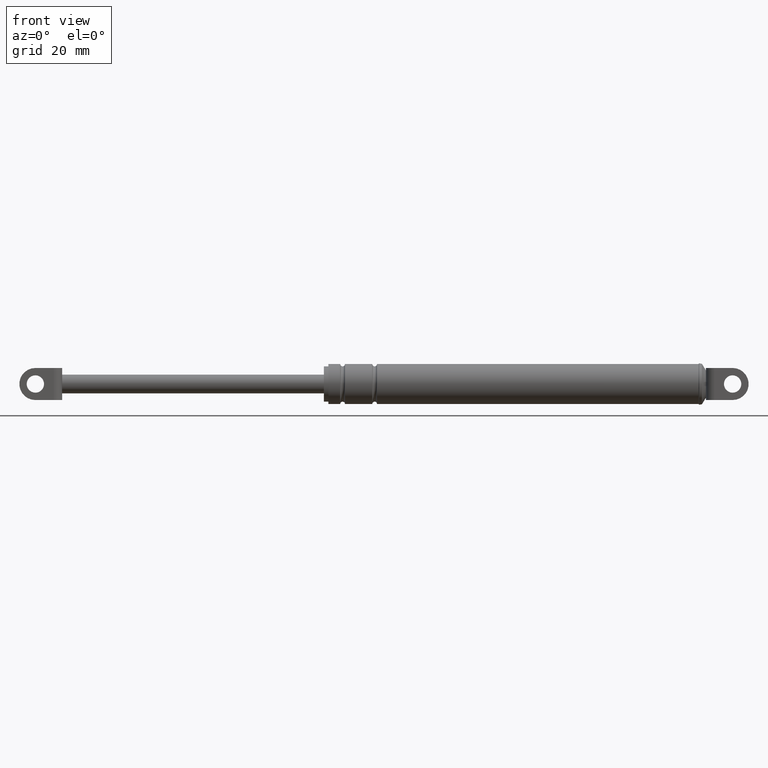
[diagram: clean part render]
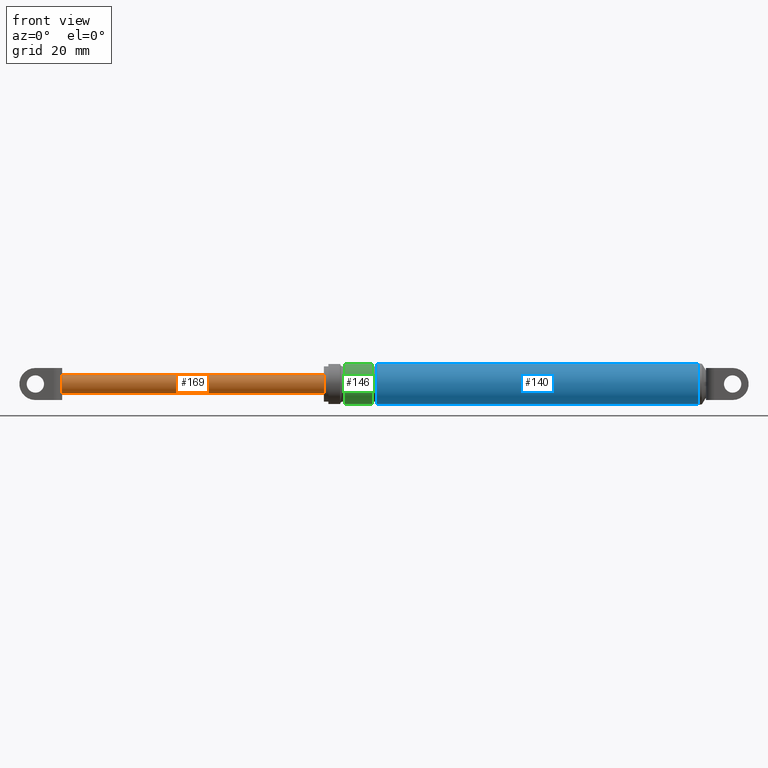
[diagram: same view with three faces highlighted in distinct colors, each labeled with its STEP entity id]
A machine part, front view with three faces highlighted in distinct colors.
Their STEP definitions:

[orange] entity #169 — the highlighted cylindrical surface (edge-blend (fillet) strip) has radius 3.5 mm, axis along (1, 0, 0).
#169=ADVANCED_FACE('',(#755),#754,.T.);
#754=CYLINDRICAL_SURFACE('',#1222,3.50000000000E+000);
#755=FACE_OUTER_BOUND('',#1223,.T.);
#1219=CARTESIAN_POINT('',(0.00000000000E+000,0.00000000000E+000,1.88774157740E+002));
#1220=DIRECTION('',(1.00000000000E+000,-0.00000000000E+000,-0.00000000000E+000));
#1221=DIRECTION('',(-0.00000000000E+000,-0.00000000000E+000,-1.00000000000E+000));
#1222=AXIS2_PLACEMENT_3D('',#1219,#1220,#1221);
#1223=EDGE_LOOP('',(#1524,#1525,#1526,#1527));
#1524=ORIENTED_EDGE('',*,*,#1685,.F.);
#1525=ORIENTED_EDGE('',*,*,#1688,.T.);
#1526=ORIENTED_EDGE('',*,*,#1686,.T.);
#1527=ORIENTED_EDGE('',*,*,#1689,.F.);
#1685=EDGE_CURVE('',#2625,#2624,#2632,.T.);
#1686=EDGE_CURVE('',#2638,#2639,#2640,.T.);
#1688=EDGE_CURVE('',#2625,#2638,#2652,.T.);
#1689=EDGE_CURVE('',#2624,#2639,#2658,.T.);
#2624=VERTEX_POINT('',#3254);
#2625=VERTEX_POINT('',#3255);
#2632=CIRCLE('',#3263,3.50000000000E+000);
#2638=VERTEX_POINT('',#3264);
#2639=VERTEX_POINT('',#3265);
#2640=CIRCLE('',#3269,3.50000000000E+000);
#2652=(BOUNDED_CURVE() B_SPLINE_CURVE(1,(#3274,#3275),.UNSPECIFIED.,.F.,.F.) B_SPLINE_CURVE_WITH_KNOTS((2,2),(8.33333332085E-002,9.16666666563E-001),.UNSPECIFIED.) CURVE() GEOMETRIC_REPRESENTATION_ITEM() RATIONAL_B_SPLINE_CURVE((1.00000000000E+000,1.00000000000E+000)) REPRESENTATION_ITEM('') );
#2658=(BOUNDED_CURVE() B_SPLINE_CURVE(1,(#3276,#3277),.UNSPECIFIED.,.F.,.F.) B_SPLINE_CURVE_WITH_KNOTS((2,2),(8.33333333333E-002,9.16666666667E-001),.UNSPECIFIED.) CURVE() GEOMETRIC_REPRESENTATION_ITEM() RATIONAL_B_SPLINE_CURVE((7.50000000000E-001,7.50000000000E-001)) REPRESENTATION_ITEM('') );
#3254=CARTESIAN_POINT('',(5.15770304968E+001,0.00000000000E+000,1.92274157740E+002));
#3255=CARTESIAN_POINT('',(5.15770304968E+001,1.48029736617E-016,1.85274157740E+002));
#3260=CARTESIAN_POINT('',(5.15770304968E+001,0.00000000000E+000,1.88774157740E+002));
#3261=DIRECTION('',(-1.00000000000E+000,0.00000000000E+000,0.00000000000E+000));
#3262=DIRECTION('',(0.00000000000E+000,-1.22460635382E-016,1.00000000000E+000));
#3263=AXIS2_PLACEMENT_3D('',#3260,#3261,#3262);
#3264=CARTESIAN_POINT('',(1.49577030497E+002,1.48029736617E-016,1.85274157740E+002));
#3265=CARTESIAN_POINT('',(1.49577030497E+002,0.00000000000E+000,1.92274157740E+002));
#3266=CARTESIAN_POINT('',(1.49577030497E+002,0.00000000000E+000,1.88774157740E+002));
#3267=DIRECTION('',(-1.00000000000E+000,0.00000000000E+000,0.00000000000E+000));
#3268=DIRECTION('',(0.00000000000E+000,-1.22460635382E-016,1.00000000000E+000));
#3269=AXIS2_PLACEMENT_3D('',#3266,#3267,#3268);
#3274=CARTESIAN_POINT('',(5.15770304822E+001,0.00000000000E+000,1.85274157740E+002));
#3275=CARTESIAN_POINT('',(1.49577030485E+002,0.00000000000E+000,1.85274157740E+002));
#3276=CARTESIAN_POINT('',(5.15770304968E+001,0.00000000000E+000,1.92274157740E+002));
#3277=CARTESIAN_POINT('',(1.49577030497E+002,0.00000000000E+000,1.92274157740E+002));

[blue] entity #140 — the highlighted cylindrical surface (edge-blend (fillet) strip) has radius 7.5 mm, axis along (1, 0, 0).
#140=ADVANCED_FACE('',(#460),#459,.T.);
#459=CYLINDRICAL_SURFACE('',#1048,7.50000000000E+000);
#460=FACE_OUTER_BOUND('',#1049,.T.);
#1045=CARTESIAN_POINT('',(0.00000000000E+000,0.00000000000E+000,1.88774157740E+002));
#1046=DIRECTION('',(1.00000000000E+000,-0.00000000000E+000,-0.00000000000E+000));
#1047=DIRECTION('',(0.00000000000E+000,0.00000000000E+000,-1.00000000000E+000));
#1048=AXIS2_PLACEMENT_3D('',#1045,#1046,#1047);
#1049=EDGE_LOOP('',(#1384,#1385,#1386,#1387));
#1384=ORIENTED_EDGE('',*,*,#1621,.F.);
#1385=ORIENTED_EDGE('',*,*,#1623,.T.);
#1386=ORIENTED_EDGE('',*,*,#1625,.T.);
#1387=ORIENTED_EDGE('',*,*,#1624,.F.);
#1621=EDGE_CURVE('',#2177,#2176,#2210,.T.);
#1623=EDGE_CURVE('',#2177,#2217,#2224,.T.);
#1624=EDGE_CURVE('',#2176,#2216,#2230,.T.);
#1625=EDGE_CURVE('',#2217,#2216,#2236,.T.);
#2176=VERTEX_POINT('',#2992);
#2177=VERTEX_POINT('',#2993);
#2210=CIRCLE('',#3021,7.50000000000E+000);
#2216=VERTEX_POINT('',#3022);
#2217=VERTEX_POINT('',#3023);
#2224=(BOUNDED_CURVE() B_SPLINE_CURVE(1,(#3028,#3029),.UNSPECIFIED.,.F.,.F.) B_SPLINE_CURVE_WITH_KNOTS((2,2),(7.12504452090E-002,9.28749554888E-001),.UNSPECIFIED.) CURVE() GEOMETRIC_REPRESENTATION_ITEM() RATIONAL_B_SPLINE_CURVE((1.00000000000E+000,1.00000000000E+000)) REPRESENTATION_ITEM('') );
#2230=(BOUNDED_CURVE() B_SPLINE_CURVE(1,(#3030,#3031),.UNSPECIFIED.,.F.,.F.) B_SPLINE_CURVE_WITH_KNOTS((2,2),(7.12504453153E-002,9.28749554685E-001),.UNSPECIFIED.) CURVE() GEOMETRIC_REPRESENTATION_ITEM() RATIONAL_B_SPLINE_CURVE((7.50000000000E-001,7.50000000000E-001)) REPRESENTATION_ITEM('') );
#2236=CIRCLE('',#3035,7.50000000000E+000);
#2992=CARTESIAN_POINT('',(1.69477030497E+002,0.00000000000E+000,1.96274157740E+002));
#2993=CARTESIAN_POINT('',(1.69477030497E+002,5.92118946467E-016,1.81274157740E+002));
#3018=CARTESIAN_POINT('',(1.69477030497E+002,0.00000000000E+000,1.88774157740E+002));
#3019=DIRECTION('',(-1.00000000000E+000,0.00000000000E+000,0.00000000000E+000));
#3020=DIRECTION('',(0.00000000000E+000,-1.22460635382E-016,1.00000000000E+000));
#3021=AXIS2_PLACEMENT_3D('',#3018,#3019,#3020);
#3022=CARTESIAN_POINT('',(2.89827030497E+002,0.00000000000E+000,1.96274157740E+002));
#3023=CARTESIAN_POINT('',(2.89827030497E+002,5.92118946467E-016,1.81274157740E+002));
#3028=CARTESIAN_POINT('',(1.69477030482E+002,0.00000000000E+000,1.81274157740E+002));
#3029=CARTESIAN_POINT('',(2.89827030525E+002,0.00000000000E+000,1.81274157740E+002));
#3030=CARTESIAN_POINT('',(1.69477030497E+002,-2.96059473233E-016,1.96274157740E+002));
#3031=CARTESIAN_POINT('',(2.89827030497E+002,-2.96059473233E-016,1.96274157740E+002));
#3032=CARTESIAN_POINT('',(2.89827030497E+002,0.00000000000E+000,1.88774157740E+002));
#3033=DIRECTION('',(-1.00000000000E+000,0.00000000000E+000,0.00000000000E+000));
#3034=DIRECTION('',(0.00000000000E+000,-1.22460635382E-016,1.00000000000E+000));
#3035=AXIS2_PLACEMENT_3D('',#3032,#3033,#3034);

[green] entity #146 — the highlighted cylindrical surface (edge-blend (fillet) strip) has radius 7.5 mm, axis along (1, 0, 0).
#146=ADVANCED_FACE('',(#520),#519,.T.);
#519=CYLINDRICAL_SURFACE('',#1102,7.50000000000E+000);
#520=FACE_OUTER_BOUND('',#1103,.T.);
#1099=CARTESIAN_POINT('',(0.00000000000E+000,0.00000000000E+000,1.88774157740E+002));
#1100=DIRECTION('',(1.00000000000E+000,-0.00000000000E+000,-0.00000000000E+000));
#1101=DIRECTION('',(0.00000000000E+000,0.00000000000E+000,-1.00000000000E+000));
#1102=AXIS2_PLACEMENT_3D('',#1099,#1100,#1101);
#1103=EDGE_LOOP('',(#1408,#1409,#1410,#1411));
#1408=ORIENTED_EDGE('',*,*,#1615,.F.);
#1409=ORIENTED_EDGE('',*,*,#1632,.T.);
#1410=ORIENTED_EDGE('',*,*,#1620,.T.);
#1411=ORIENTED_EDGE('',*,*,#1633,.F.);
#1615=EDGE_CURVE('',#2137,#2136,#2170,.T.);
#1620=EDGE_CURVE('',#2184,#2191,#2204,.T.);
#1632=EDGE_CURVE('',#2137,#2184,#2280,.T.);
#1633=EDGE_CURVE('',#2136,#2191,#2286,.T.);
#2136=VERTEX_POINT('',#2962);
#2137=VERTEX_POINT('',#2963);
#2170=CIRCLE('',#2991,7.50000000000E+000);
#2184=VERTEX_POINT('',#2998);
#2191=VERTEX_POINT('',#3004);
#2204=CIRCLE('',#3017,7.50000000000E+000);
#2280=(BOUNDED_CURVE() B_SPLINE_CURVE(1,(#3054,#3055),.UNSPECIFIED.,.F.,.F.) B_SPLINE_CURVE_WITH_KNOTS((2,2),(8.33333343261E-002,9.16666667006E-001),.UNSPECIFIED.) CURVE() GEOMETRIC_REPRESENTATION_ITEM() RATIONAL_B_SPLINE_CURVE((1.00000000000E+000,1.00000000000E+000)) REPRESENTATION_ITEM('') );
#2286=(BOUNDED_CURVE() B_SPLINE_CURVE(1,(#3056,#3057),.UNSPECIFIED.,.F.,.F.) B_SPLINE_CURVE_WITH_KNOTS((2,2),(8.33333333333E-002,9.16666666667E-001),.UNSPECIFIED.) CURVE() GEOMETRIC_REPRESENTATION_ITEM() RATIONAL_B_SPLINE_CURVE((7.50000000000E-001,7.50000000000E-001)) REPRESENTATION_ITEM('') );
#2962=CARTESIAN_POINT('',(1.57477030497E+002,0.00000000000E+000,1.96274157740E+002));
#2963=CARTESIAN_POINT('',(1.57477030497E+002,5.92118946467E-016,1.81274157740E+002));
#2988=CARTESIAN_POINT('',(1.57477030497E+002,0.00000000000E+000,1.88774157740E+002));
#2989=DIRECTION('',(-1.00000000000E+000,0.00000000000E+000,0.00000000000E+000));
#2990=DIRECTION('',(0.00000000000E+000,-1.22460635382E-016,1.00000000000E+000));
#2991=AXIS2_PLACEMENT_3D('',#2988,#2989,#2990);
#2998=CARTESIAN_POINT('',(1.67677030497E+002,5.92118946467E-016,1.81274157740E+002));
#3004=CARTESIAN_POINT('',(1.67677030497E+002,0.00000000000E+000,1.96274157740E+002));
#3014=CARTESIAN_POINT('',(1.67677030497E+002,0.00000000000E+000,1.88774157740E+002));
#3015=DIRECTION('',(-1.00000000000E+000,0.00000000000E+000,0.00000000000E+000));
#3016=DIRECTION('',(0.00000000000E+000,-1.22460635382E-016,1.00000000000E+000));
#3017=AXIS2_PLACEMENT_3D('',#3014,#3015,#3016);
#3054=CARTESIAN_POINT('',(1.57477030509E+002,0.00000000000E+000,1.81274157740E+002));
#3055=CARTESIAN_POINT('',(1.67677030501E+002,0.00000000000E+000,1.81274157740E+002));
#3056=CARTESIAN_POINT('',(1.57477030497E+002,-2.96059473233E-016,1.96274157740E+002));
#3057=CARTESIAN_POINT('',(1.67677030497E+002,-2.96059473233E-016,1.96274157740E+002));